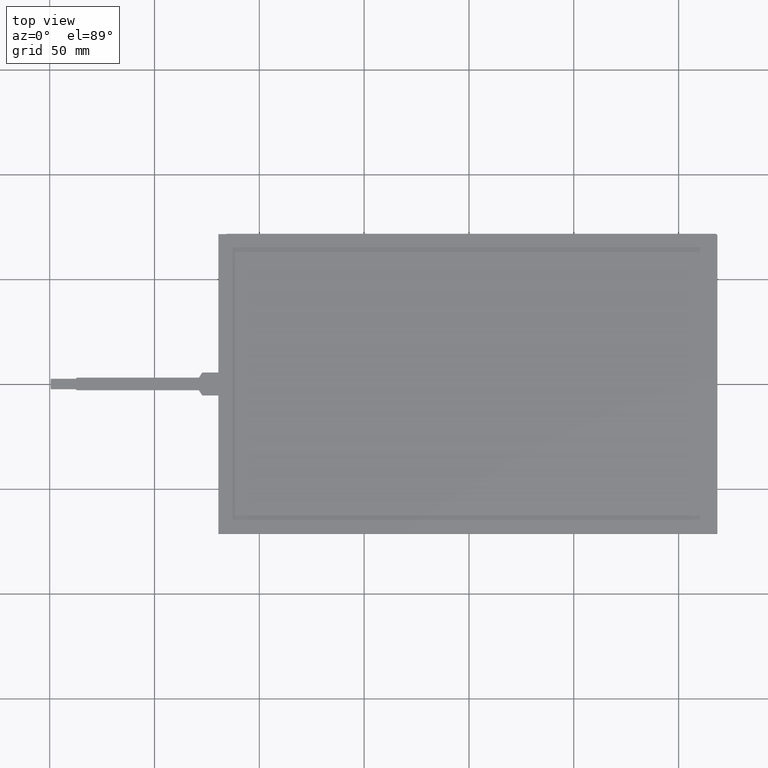
[diagram: clean part render]
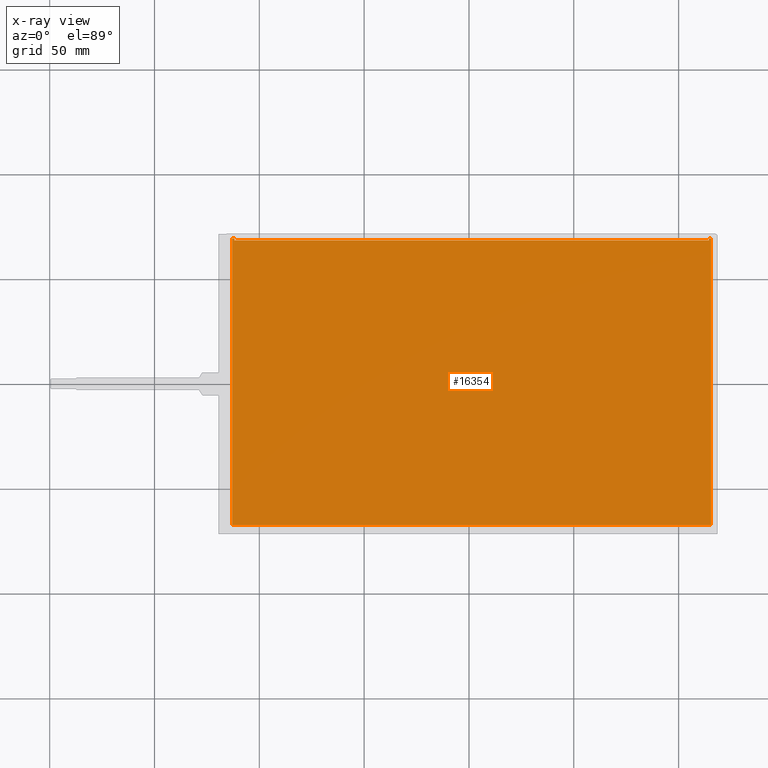
[diagram: x-ray — body ghosted, one internal face saturated and labeled with its STEP entity id]
A machine part, top view, then the same camera in x-ray: the body is ghosted and one INTERNAL B-rep face — a face not visible from any outside direction — is saturated and labeled: STEP entity #16354.
In plain terms, the highlighted planar face has unit normal (0, -0.001, 1).
Its self-contained STEP definition (entity closure, byte-faithful):
#1097=FACE_OUTER_BOUND('',#1995,.T.);
#1995=EDGE_LOOP('',(#13833,#13834,#13835,#13836,#13837,#13838,#13839,#13840,
#13841,#13842,#13843,#13844));
#2987=LINE('',#23972,#5082);
#3003=LINE('',#24005,#5098);
#3563=LINE('',#25278,#5658);
#3570=LINE('',#25293,#5665);
#3832=LINE('',#25904,#5927);
#3833=LINE('',#25906,#5928);
#3834=LINE('',#25908,#5929);
#3835=LINE('',#25910,#5930);
#3836=LINE('',#25912,#5931);
#3837=LINE('',#25914,#5932);
#3838=LINE('',#25915,#5933);
#3839=LINE('',#25916,#5934);
#5082=VECTOR('',#19205,10.);
#5098=VECTOR('',#19227,10.);
#5658=VECTOR('',#20369,10.);
#5665=VECTOR('',#20390,10.);
#5927=VECTOR('',#20910,10.);
#5928=VECTOR('',#20911,10.);
#5929=VECTOR('',#20912,10.);
#5930=VECTOR('',#20913,10.);
#5931=VECTOR('',#20914,10.);
#5932=VECTOR('',#20915,10.);
#5933=VECTOR('',#20916,10.);
#5934=VECTOR('',#20917,10.);
#7033=VERTEX_POINT('',#23970);
#7034=VERTEX_POINT('',#23971);
#7048=VERTEX_POINT('',#24003);
#7468=VERTEX_POINT('',#25272);
#7470=VERTEX_POINT('',#25276);
#7471=VERTEX_POINT('',#25292);
#7647=VERTEX_POINT('',#25903);
#7648=VERTEX_POINT('',#25905);
#7649=VERTEX_POINT('',#25907);
#7650=VERTEX_POINT('',#25909);
#7651=VERTEX_POINT('',#25911);
#7652=VERTEX_POINT('',#25913);
#8840=EDGE_CURVE('',#7033,#7034,#2987,.T.);
#8857=EDGE_CURVE('',#7034,#7048,#3003,.T.);
#9496=EDGE_CURVE('',#7468,#7470,#3563,.T.);
#9503=EDGE_CURVE('',#7470,#7471,#3570,.T.);
#9787=EDGE_CURVE('',#7647,#7471,#3832,.T.);
#9788=EDGE_CURVE('',#7648,#7647,#3833,.T.);
#9789=EDGE_CURVE('',#7648,#7649,#3834,.T.);
#9790=EDGE_CURVE('',#7649,#7650,#3835,.T.);
#9791=EDGE_CURVE('',#7651,#7650,#3836,.T.);
#9792=EDGE_CURVE('',#7651,#7652,#3837,.T.);
#9793=EDGE_CURVE('',#7652,#7033,#3838,.T.);
#9794=EDGE_CURVE('',#7468,#7048,#3839,.T.);
#13833=ORIENTED_EDGE('',*,*,#9496,.T.);
#13834=ORIENTED_EDGE('',*,*,#9503,.T.);
#13835=ORIENTED_EDGE('',*,*,#9787,.F.);
#13836=ORIENTED_EDGE('',*,*,#9788,.F.);
#13837=ORIENTED_EDGE('',*,*,#9789,.T.);
#13838=ORIENTED_EDGE('',*,*,#9790,.T.);
#13839=ORIENTED_EDGE('',*,*,#9791,.F.);
#13840=ORIENTED_EDGE('',*,*,#9792,.T.);
#13841=ORIENTED_EDGE('',*,*,#9793,.T.);
#13842=ORIENTED_EDGE('',*,*,#8840,.T.);
#13843=ORIENTED_EDGE('',*,*,#8857,.T.);
#13844=ORIENTED_EDGE('',*,*,#9794,.F.);
#15527=PLANE('',#17430);
#16354=ADVANCED_FACE('',(#1097),#15527,.T.);
#17430=AXIS2_PLACEMENT_3D('',#25902,#20908,#20909);
#19205=DIRECTION('',(0.,-0.999999469350118,-0.00103019390550002));
#19227=DIRECTION('',(-1.,7.3366754706825E-15,7.55820236728779E-18));
#20369=DIRECTION('',(1.,-1.24315654857388E-14,-1.28069297952283E-17));
#20390=DIRECTION('',(0.,-0.999999469350118,-0.00103019390550002));
#20908=DIRECTION('center_axis',(0.,-0.00103019390550002,0.999999469350118));
#20909=DIRECTION('ref_axis',(1.,0.,0.));
#20910=DIRECTION('',(-1.,0.,0.));
#20911=DIRECTION('',(0.,-0.999999469350118,-0.00103019390550002));
#20912=DIRECTION('',(-1.,0.,0.));
#20913=DIRECTION('',(0.,-0.999999469350118,-0.00103019390549879));
#20914=DIRECTION('',(1.,0.,0.));
#20915=DIRECTION('',(0.,0.999999469350118,0.00103019390550349));
#20916=DIRECTION('',(-1.,-9.04313343066369E-13,-4.99142631218561E-15));
#20917=DIRECTION('',(0.,0.999999469350118,0.00103019390550002));
#23970=CARTESIAN_POINT('',(-112.96,69.5799076261885,-4.57899687066609));
#23971=CARTESIAN_POINT('',(-112.96,-4.63999999999348,-4.65545780774335));
#23972=CARTESIAN_POINT('',(-112.96,-30.2362448098018,-4.68182691714286));
#24003=CARTESIAN_POINT('',(-113.,-4.63999999999349,-4.65545780774335));
#24005=CARTESIAN_POINT('',(5.21280717412721,-4.63999999999436,-4.65545780774336));
#25272=CARTESIAN_POINT('',(-113.,-20.2399999999935,-4.67152884119724));
#25276=CARTESIAN_POINT('',(-112.96,-20.2399999999935,-4.67152884119724));
#25278=CARTESIAN_POINT('',(2.49663199999861,-20.2399999999949,-4.67152884119725));
#25292=CARTESIAN_POINT('',(-112.96,-67.2860593727257,-4.71999543055961));
#25293=CARTESIAN_POINT('',(-112.96,-30.2362448098018,-4.68182691714286));
#25902=CARTESIAN_POINT('Origin',(118.173264,2.01340218502316,-4.64860350972427));
#25903=CARTESIAN_POINT('',(115.5,-67.2860593727257,-4.71999543055961));
#25904=CARTESIAN_POINT('',(115.5,-67.2860593727257,-4.71999543055961));
#25905=CARTESIAN_POINT('',(115.5,69.5799076261885,-4.57899687066609));
#25906=CARTESIAN_POINT('',(115.5,69.5799076261885,-4.57899687066609));
#25907=CARTESIAN_POINT('',(114.5,69.5799076261885,-4.57899687066609));
#25908=CARTESIAN_POINT('',(115.5,69.5799076261885,-4.57899687066609));
#25909=CARTESIAN_POINT('',(114.5,68.6299081303064,-4.57997555487632));
#25910=CARTESIAN_POINT('',(114.5,69.5799076261885,-4.57899687066609));
#25911=CARTESIAN_POINT('',(-111.9,68.6299081303064,-4.57997555487632));
#25912=CARTESIAN_POINT('',(-111.9,68.6299081303064,-4.57997555487632));
#25913=CARTESIAN_POINT('',(-111.9,69.5799076261895,-4.57899687066609));
#25914=CARTESIAN_POINT('',(-111.9,68.6299081303064,-4.57997555487632));
#25915=CARTESIAN_POINT('',(-111.9,69.5799076261895,-4.57899687066609));
#25916=CARTESIAN_POINT('',(-113.,-67.2860593727257,-4.71999543055961));